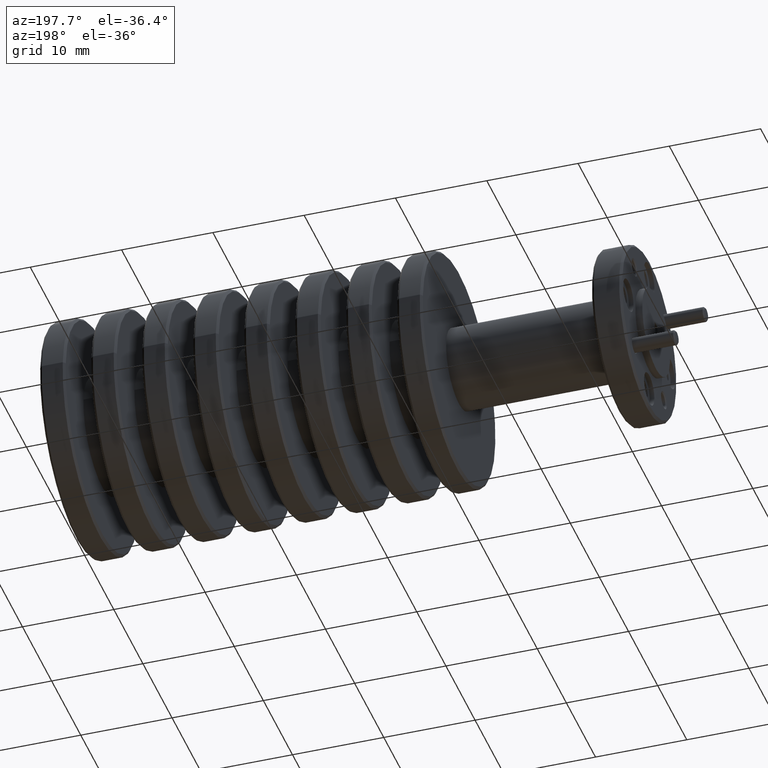
[diagram: clean part render]
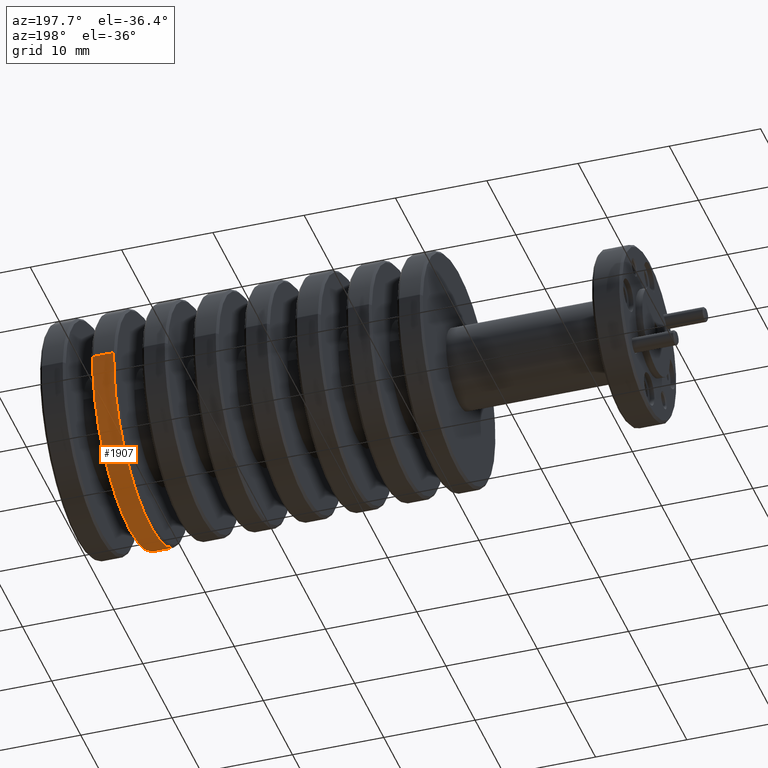
[diagram: same view with one face highlighted and labeled with its STEP entity id]
A machine part, auxiliary view. The second image highlights one B-rep face of the part: STEP entity #1907.
In plain terms, the highlighted cylindrical surface (partial cylindrical patch) has radius 12.7 mm, axis along (1, 0, 0).
Its self-contained STEP definition (entity closure, byte-faithful):
#145 = CYLINDRICAL_SURFACE ( 'NONE', #6763, 0.5000000000000001100 ) ;
#415 = EDGE_CURVE ( 'NONE', #5477, #1684, #8679, .T. ) ;
#486 = DIRECTION ( 'NONE',  ( 0.0000000000000000000, 0.9974215059003817000, 0.07176586631132345100 ) ) ;
#637 = DIRECTION ( 'NONE',  ( 0.0000000000000000000, 0.9974215059003817000, 0.07176586631132345100 ) ) ;
#808 = CARTESIAN_POINT ( 'NONE',  ( 0.4861103057193306200, 1.233292430136084100, 1.027949227593007800 ) ) ;
#821 = AXIS2_PLACEMENT_3D ( 'NONE', #808, #2881, #7575 ) ;
#1080 = ORIENTED_EDGE ( 'NONE', *, *, #415, .T. ) ;
#1110 = DIRECTION ( 'NONE',  ( 1.000000000000000000, 0.0000000000000000000, 0.0000000000000000000 ) ) ;
#1163 = EDGE_CURVE ( 'NONE', #1684, #8514, #3122, .T. ) ;
#1177 = CARTESIAN_POINT ( 'NONE',  ( 0.8061103057193299600, 0.7345816771858931800, 0.9920662944373460600 ) ) ;
#1333 = CARTESIAN_POINT ( 'NONE',  ( 0.4861103057193306200, 1.732003183086275200, 1.063832160748669600 ) ) ;
#1338 = LINE ( 'NONE', #1177, #1729 ) ;
#1684 = VERTEX_POINT ( 'NONE', #1333 ) ;
#1729 = VECTOR ( 'NONE', #6004, 39.37007874015748100 ) ;
#1907 = ADVANCED_FACE ( 'NONE', ( #7798 ), #145, .T. ) ;
#2044 = DIRECTION ( 'NONE',  ( -1.000000000000000000, -0.0000000000000000000, -0.0000000000000000000 ) ) ;
#2881 = DIRECTION ( 'NONE',  ( 1.000000000000000000, 0.0000000000000000000, -0.0000000000000000000 ) ) ;
#3122 = LINE ( 'NONE', #6756, #6016 ) ;
#3589 = CIRCLE ( 'NONE', #7353, 0.5000000000000001100 ) ;
#3606 = CARTESIAN_POINT ( 'NONE',  ( 0.8061103057193299600, 1.233292430136084100, 1.027949227593007800 ) ) ;
#3697 = EDGE_CURVE ( 'NONE', #8514, #5343, #3589, .T. ) ;
#5326 = CARTESIAN_POINT ( 'NONE',  ( 0.5761103057193302000, 0.7345816771858931800, 0.9920662944373460600 ) ) ;
#5343 = VERTEX_POINT ( 'NONE', #5326 ) ;
#5477 = VERTEX_POINT ( 'NONE', #5899 ) ;
#5899 = CARTESIAN_POINT ( 'NONE',  ( 0.4861103057193306200, 0.7345816771858931800, 0.9920662944373460600 ) ) ;
#6004 = DIRECTION ( 'NONE',  ( 1.000000000000000000, 0.0000000000000000000, 0.0000000000000000000 ) ) ;
#6016 = VECTOR ( 'NONE', #8759, 39.37007874015748100 ) ;
#6261 = ORIENTED_EDGE ( 'NONE', *, *, #1163, .T. ) ;
#6270 = ORIENTED_EDGE ( 'NONE', *, *, #7563, .F. ) ;
#6561 = EDGE_LOOP ( 'NONE', ( #6270, #1080, #6261, #7605 ) ) ;
#6756 = CARTESIAN_POINT ( 'NONE',  ( 0.8061103057193299600, 1.732003183086275200, 1.063832160748669600 ) ) ;
#6763 = AXIS2_PLACEMENT_3D ( 'NONE', #3606, #1110, #486 ) ;
#7053 = CARTESIAN_POINT ( 'NONE',  ( 0.5761103057193302000, 1.732003183086275200, 1.063832160748669600 ) ) ;
#7353 = AXIS2_PLACEMENT_3D ( 'NONE', #8287, #2044, #637 ) ;
#7563 = EDGE_CURVE ( 'NONE', #5477, #5343, #1338, .T. ) ;
#7575 = DIRECTION ( 'NONE',  ( 0.0000000000000000000, -0.9974215059003817000, -0.07176586631132345100 ) ) ;
#7605 = ORIENTED_EDGE ( 'NONE', *, *, #3697, .T. ) ;
#7798 = FACE_OUTER_BOUND ( 'NONE', #6561, .T. ) ;
#8287 = CARTESIAN_POINT ( 'NONE',  ( 0.5761103057193302000, 1.233292430136084100, 1.027949227593007800 ) ) ;
#8514 = VERTEX_POINT ( 'NONE', #7053 ) ;
#8679 = CIRCLE ( 'NONE', #821, 0.5000000000000001100 ) ;
#8759 = DIRECTION ( 'NONE',  ( 1.000000000000000000, 0.0000000000000000000, 0.0000000000000000000 ) ) ;